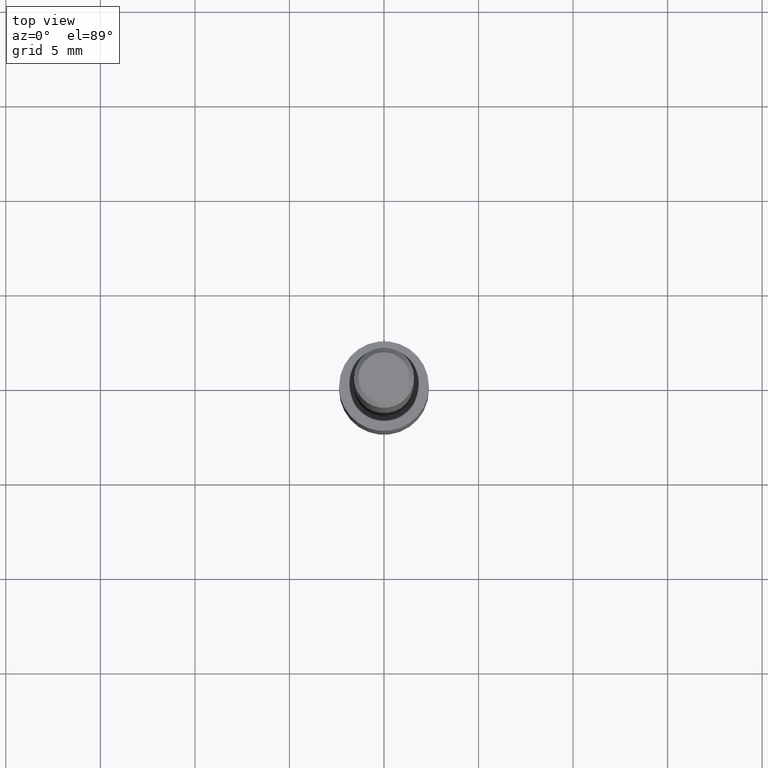
[diagram: clean part render]
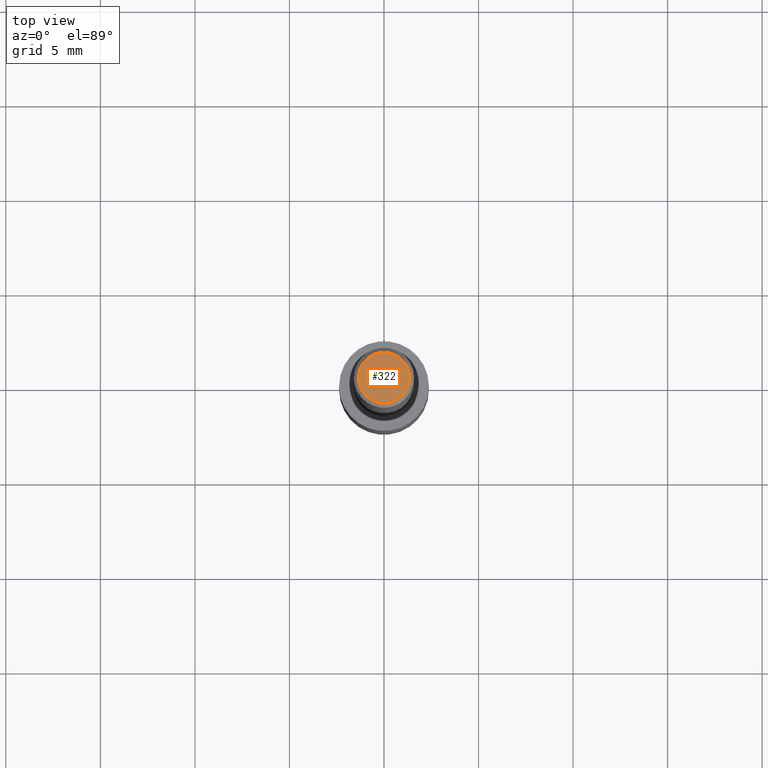
[diagram: same view with one face highlighted and labeled with its STEP entity id]
A machine part, top view. The second image highlights one B-rep face of the part: STEP entity #322.
In plain terms, the highlighted planar face has unit normal (0, -0, -1).
Its self-contained STEP definition (entity closure, byte-faithful):
#13 = CARTESIAN_POINT ( 'NONE',  ( 0.05312499999999999861, -4.129888592719939842E-16, 3.061617000609493422E-21 ) ) ;
#17 = CARTESIAN_POINT ( 'NONE',  ( -7.487088864773345706E-50, 1.068957861474247695E-35, 3.061616997868395197E-21 ) ) ;
#41 = DIRECTION ( 'NONE',  ( -1.000000000000000000, 6.982962677686265922E-15, -4.876176775795935793E-29 ) ) ;
#53 = EDGE_CURVE ( 'NONE', #232, #259, #296, .T. ) ;
#65 = EDGE_CURVE ( 'NONE', #259, #232, #149, .T. ) ;
#88 = CARTESIAN_POINT ( 'NONE',  ( -3.743544432386672853E-50, 5.344789307371238476E-36, 1.530808498934197599E-21 ) ) ;
#109 = DIRECTION ( 'NONE',  ( 1.000000000000000000, -6.982962677686266711E-15, 4.876176628004948512E-29 ) ) ;
#122 = AXIS2_PLACEMENT_3D ( 'NONE', #195, #273, #165 ) ;
#127 = ORIENTED_EDGE ( 'NONE', *, *, #53, .T. ) ;
#128 = DIRECTION ( 'NONE',  ( 2.438088387897960049E-29, -3.491481338843145188E-15, -1.000000000000000000 ) ) ;
#135 = PLANE ( 'NONE',  #193 ) ;
#138 = EDGE_LOOP ( 'NONE', ( #201, #127 ) ) ;
#142 = DIRECTION ( 'NONE',  ( -2.445468806185136597E-29, 3.491481338843145583E-15, 1.000000000000000000 ) ) ;
#149 = CIRCLE ( 'NONE', #252, 0.05312499999999999861 ) ;
#165 = DIRECTION ( 'NONE',  ( 1.000000000000000000, -6.982962677686266711E-15, 4.876176628004948512E-29 ) ) ;
#193 = AXIS2_PLACEMENT_3D ( 'NONE', #88, #128, #41 ) ;
#195 = CARTESIAN_POINT ( 'NONE',  ( -7.487088864773345706E-50, 1.068957861474247695E-35, 3.061616997868395197E-21 ) ) ;
#201 = ORIENTED_EDGE ( 'NONE', *, *, #65, .T. ) ;
#232 = VERTEX_POINT ( 'NONE', #13 ) ;
#252 = AXIS2_PLACEMENT_3D ( 'NONE', #17, #142, #109 ) ;
#253 = CARTESIAN_POINT ( 'NONE',  ( -0.05312499999999999861, 3.873362110279099094E-16, 3.061616995216862494E-21 ) ) ;
#259 = VERTEX_POINT ( 'NONE', #253 ) ;
#273 = DIRECTION ( 'NONE',  ( -2.445468806185136597E-29, 3.491481338843145583E-15, 1.000000000000000000 ) ) ;
#296 = CIRCLE ( 'NONE', #122, 0.05312499999999999861 ) ;
#321 = FACE_OUTER_BOUND ( 'NONE', #138, .T. ) ;
#322 = ADVANCED_FACE ( 'NONE', ( #321 ), #135, .F. ) ;